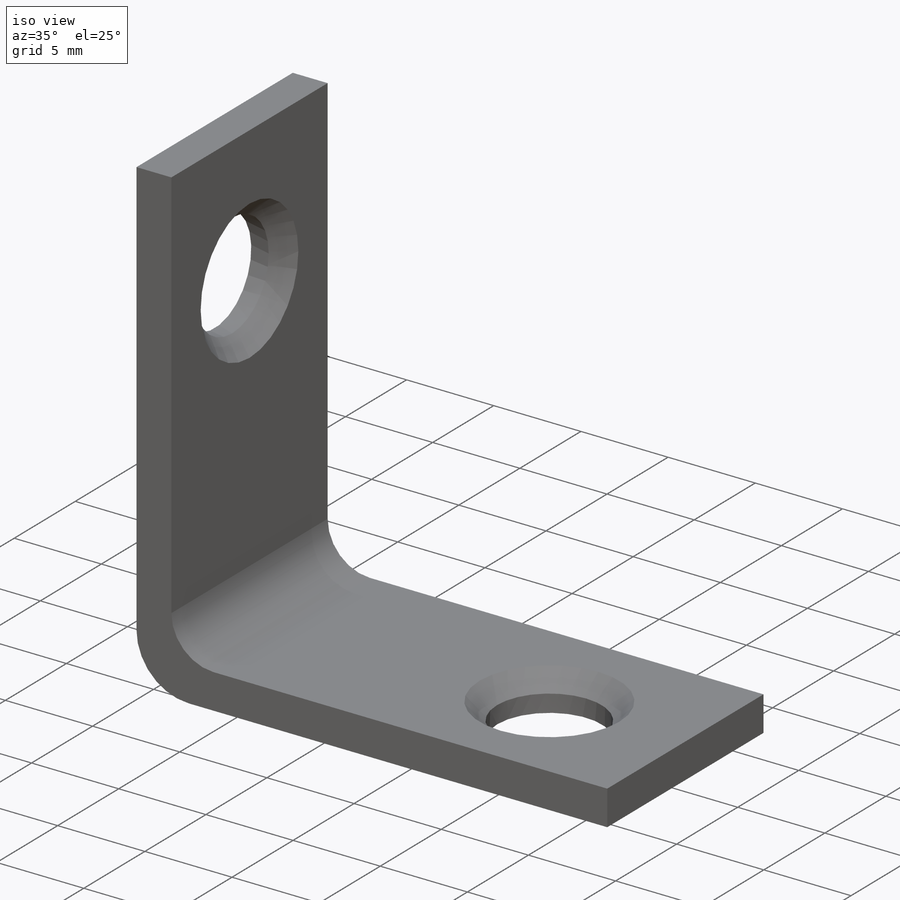
[diagram: iso view]
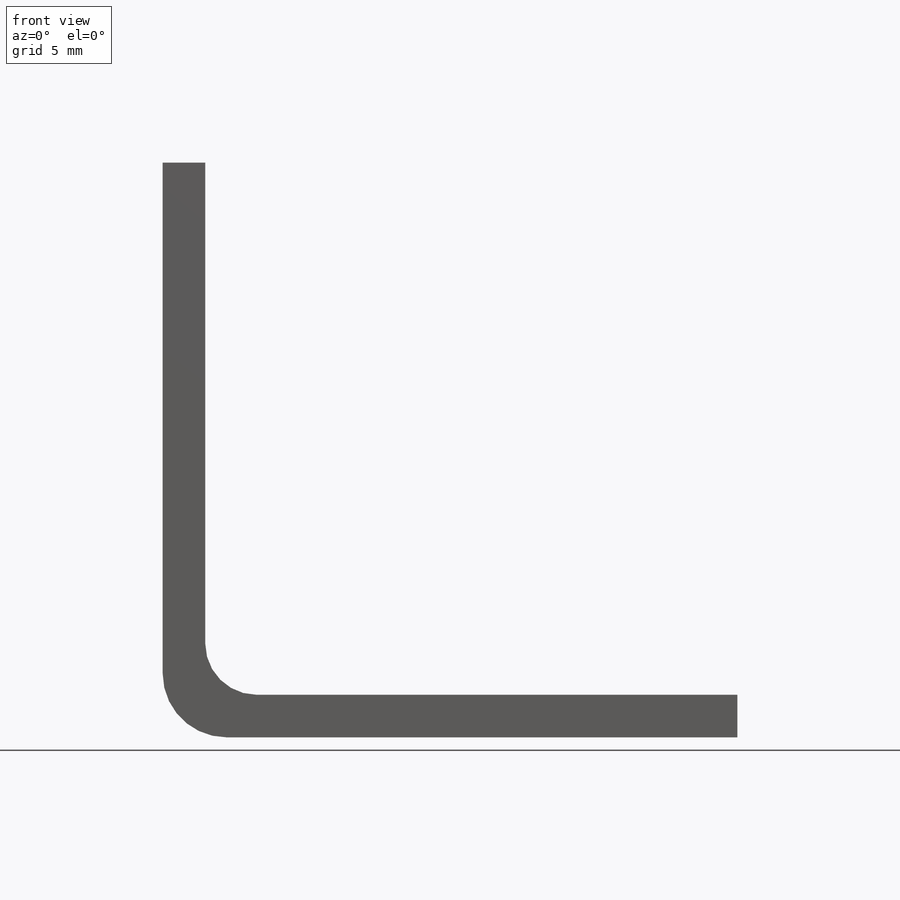
[diagram: front view]
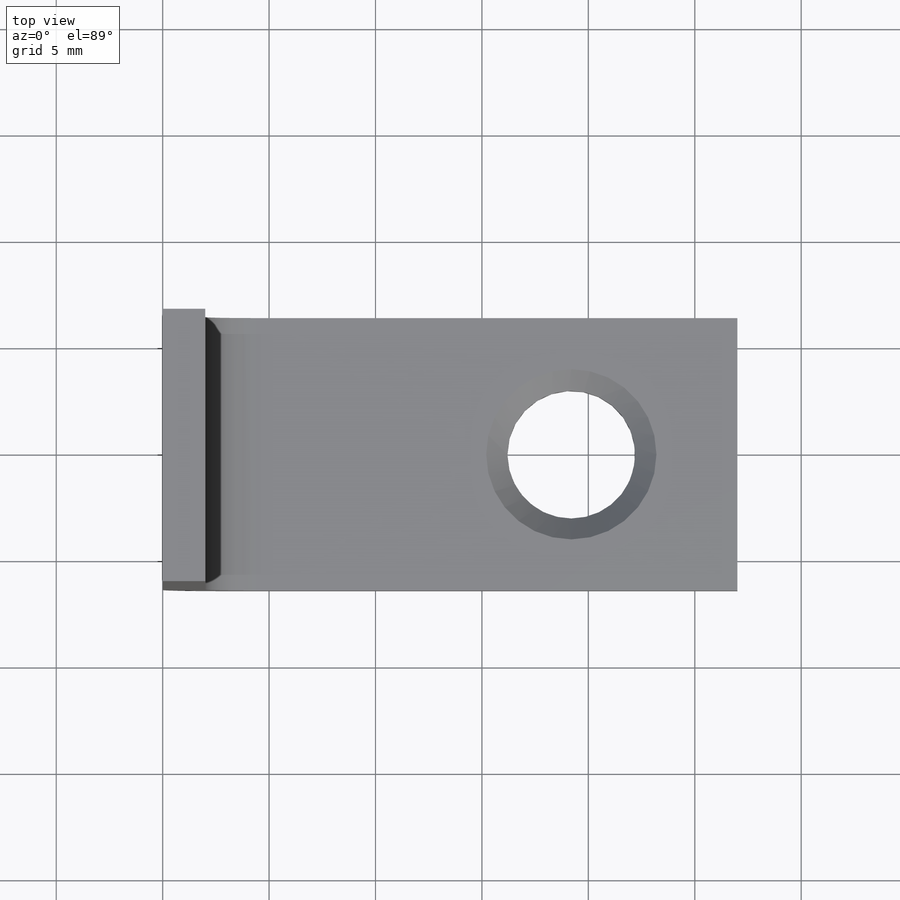
[diagram: top view]
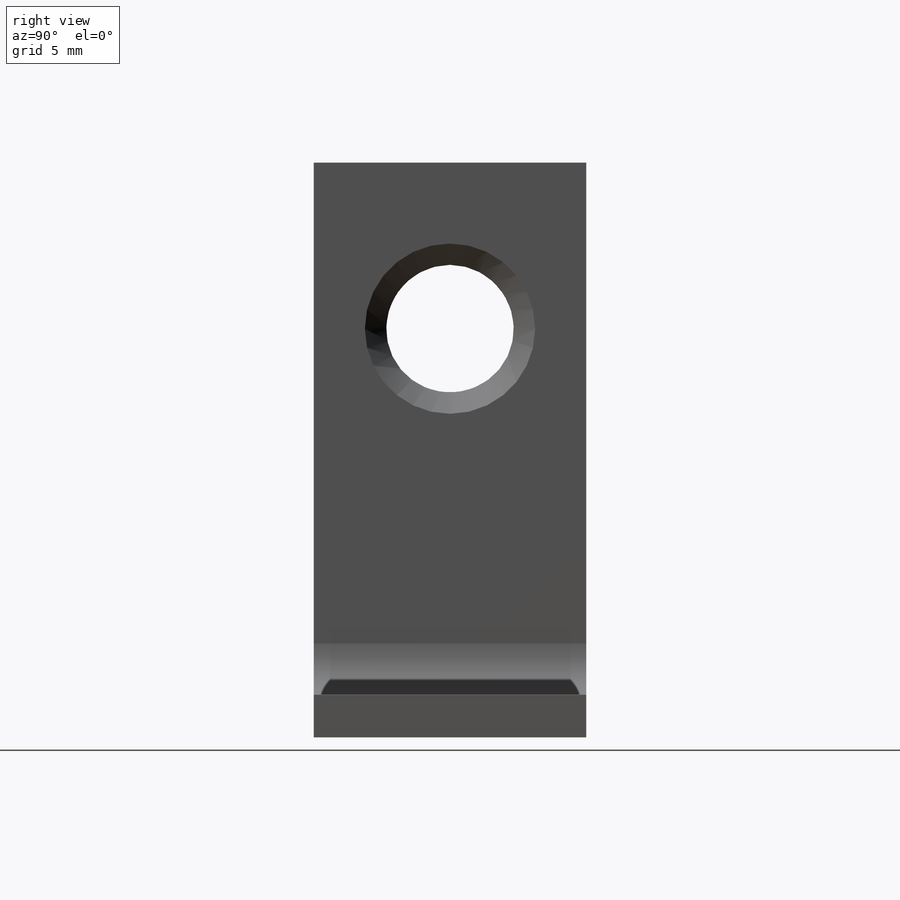
[diagram: right view]
SOLIDWORKS PART (.sldprt)
format: sldprt  version: not decoded by parser v0  size: 191,488 bytes
history: native  units: mm
features: sketch x3, cut_extrude x2, material x1, extrude x1, chamfer x1 (+11 scaffold rows collapsed)
feature tree (19):
  scaffold x11  (default folders/planes/origin — collapsed)
  material  "AISI 316 Stainless Steel Sheet (SS)"
  sketch  "Sketch1"  dims[c1.D3=3.0mm c1.D1=3.0mm c1.D4=~2.160308mm c2.D1=27.0mm c2.D2=27.0mm c3.D1=2.0mm c3.D4=3.0mm c4.D1=2.0mm c4.D4=2.0mm]
  extrude  "Boss-Extrude1"  Depth=12.8mm
  sketch  "Sketch2"  dims[D2=6.0mm D1=7.8mm]
  sketch  "Sketch3"  dims[D2=6.0mm D1=7.8mm]
  cut_extrude  "Cut-Extrude1"  [1 undecoded]
  cut_extrude  "Cut-Extrude2"  [1 undecoded]
  chamfer  "Chamfer1"  Distance=1mm Angle=45deg
decode coverage: 5 of 7 modeling features carry decoded parameters
note: ~ marks probable driven/reference dimensions
note: 2 parameter values undecoded
note: suppression state not decoded; provenance and decode notes live in map.json
